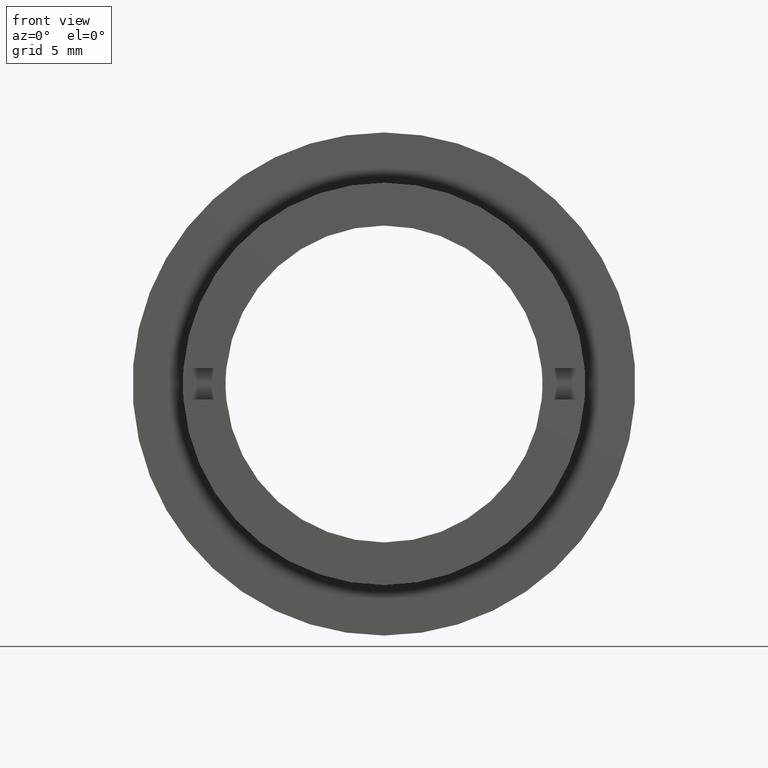
[diagram: clean part render]
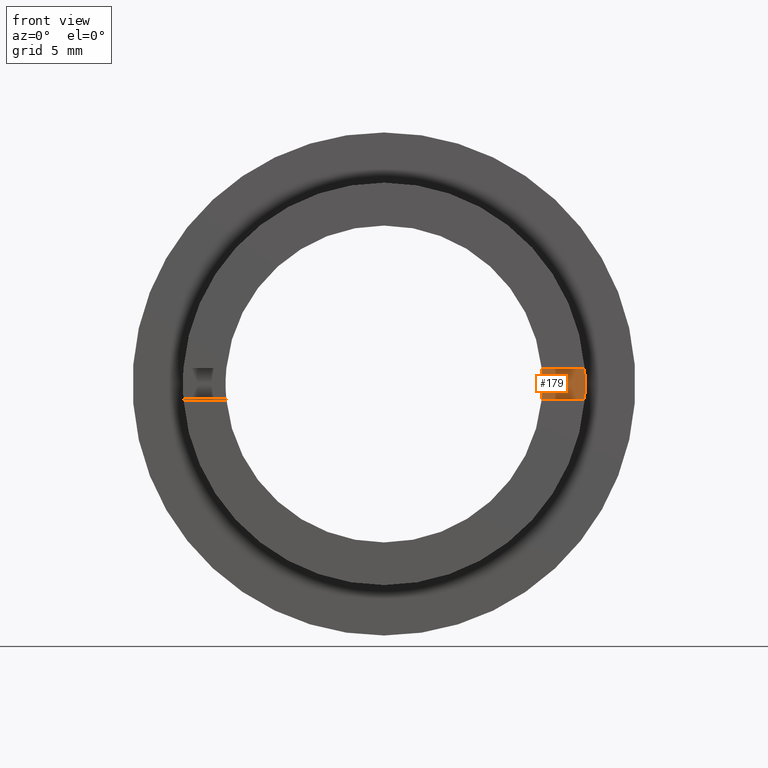
[diagram: same view with one face highlighted and labeled with its STEP entity id]
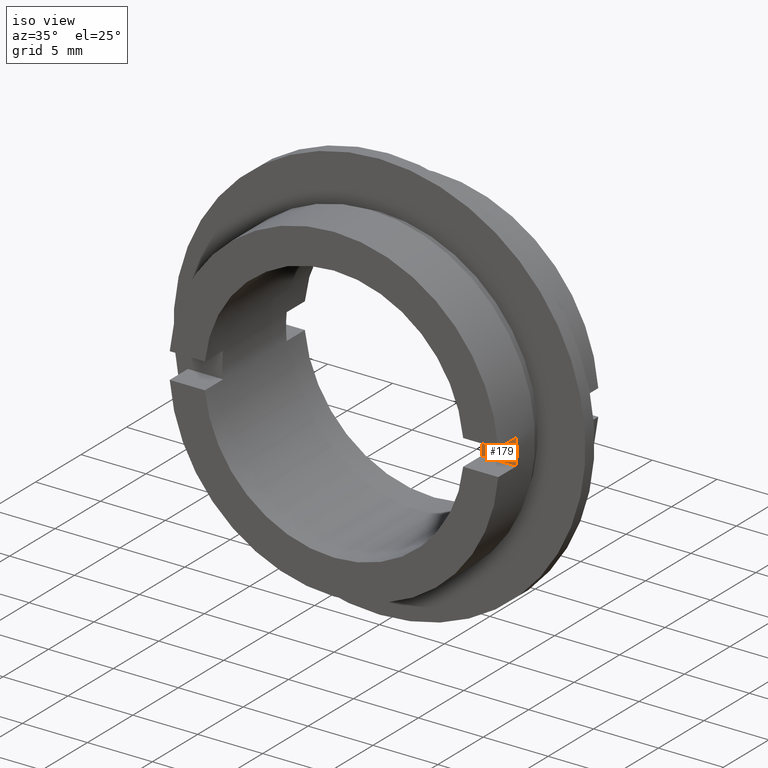
[diagram: same view with one face highlighted and labeled with its STEP entity id]
A machine part, front view. The second image highlights one B-rep face of the part: STEP entity #179.
A second angle (iso view) of the same face is appended — the face is thin or edge-on in the first view.
In plain terms, the highlighted planar face has unit normal (0, 1, 0).
Its self-contained STEP definition (entity closure, byte-faithful):
#12 = LINE ( 'NONE', #36, #307 ) ;
#19 = DIRECTION ( 'NONE',  ( 0.0000000000000000000, -0.0000000000000000000, 1.000000000000000000 ) ) ;
#36 = CARTESIAN_POINT ( 'NONE',  ( -39.50000000000002100, 2.000000000000000000, -0.9999999999999995600 ) ) ;
#72 = PLANE ( 'NONE',  #766 ) ;
#93 = VERTEX_POINT ( 'NONE', #842 ) ;
#140 = DIRECTION ( 'NONE',  ( 0.0000000000000000000, 0.0000000000000000000, 1.000000000000000000 ) ) ;
#179 = ADVANCED_FACE ( 'NONE', ( #1066 ), #72, .F. ) ;
#206 = ORIENTED_EDGE ( 'NONE', *, *, #263, .T. ) ;
#214 = DIRECTION ( 'NONE',  ( 1.000000000000000000, -0.0000000000000000000, -0.0000000000000000000 ) ) ;
#228 = CARTESIAN_POINT ( 'NONE',  ( 9.949874371066195900, 1.999999999999998200, 1.000000000000000200 ) ) ;
#236 = CARTESIAN_POINT ( 'NONE',  ( -39.50000000000002100, 2.000000000000000000, 1.000000000000000200 ) ) ;
#257 = CARTESIAN_POINT ( 'NONE',  ( 12.66056870760551300, 1.999999999999998200, 1.000000000000000200 ) ) ;
#263 = EDGE_CURVE ( 'NONE', #298, #93, #437, .T. ) ;
#298 = VERTEX_POINT ( 'NONE', #228 ) ;
#307 = VECTOR ( 'NONE', #214, 1000.000000000000000 ) ;
#319 = DIRECTION ( 'NONE',  ( 0.0000000000000000000, 1.000000000000000000, 0.0000000000000000000 ) ) ;
#322 = CIRCLE ( 'NONE', #887, 12.69999999999999800 ) ;
#364 = EDGE_CURVE ( 'NONE', #93, #797, #12, .T. ) ;
#399 = CARTESIAN_POINT ( 'NONE',  ( 12.66056870760551300, 2.000000000000000000, -0.9999999999999995600 ) ) ;
#437 = CIRCLE ( 'NONE', #508, 9.999999999999996400 ) ;
#462 = EDGE_CURVE ( 'NONE', #298, #950, #565, .T. ) ;
#485 = ORIENTED_EDGE ( 'NONE', *, *, #462, .F. ) ;
#508 = AXIS2_PLACEMENT_3D ( 'NONE', #998, #783, #140 ) ;
#526 = DIRECTION ( 'NONE',  ( -0.0000000000000000000, -1.000000000000000000, -0.0000000000000000000 ) ) ;
#565 = LINE ( 'NONE', #871, #920 ) ;
#670 = EDGE_LOOP ( 'NONE', ( #206, #962, #1138, #485 ) ) ;
#766 = AXIS2_PLACEMENT_3D ( 'NONE', #236, #319, #19 ) ;
#783 = DIRECTION ( 'NONE',  ( 0.0000000000000000000, 1.000000000000000000, 0.0000000000000000000 ) ) ;
#797 = VERTEX_POINT ( 'NONE', #399 ) ;
#832 = EDGE_CURVE ( 'NONE', #797, #950, #322, .T. ) ;
#842 = CARTESIAN_POINT ( 'NONE',  ( 9.949874371066195900, 2.000000000000000000, -0.9999999999999995600 ) ) ;
#871 = CARTESIAN_POINT ( 'NONE',  ( -39.50000000000002100, 2.000000000000000000, 1.000000000000000200 ) ) ;
#887 = AXIS2_PLACEMENT_3D ( 'NONE', #1032, #526, #1121 ) ;
#920 = VECTOR ( 'NONE', #1077, 1000.000000000000000 ) ;
#950 = VERTEX_POINT ( 'NONE', #257 ) ;
#962 = ORIENTED_EDGE ( 'NONE', *, *, #364, .T. ) ;
#998 = CARTESIAN_POINT ( 'NONE',  ( 0.0000000000000000000, 1.999999999999998200, 0.0000000000000000000 ) ) ;
#1032 = CARTESIAN_POINT ( 'NONE',  ( 0.0000000000000000000, 1.999999999999998200, 0.0000000000000000000 ) ) ;
#1066 = FACE_OUTER_BOUND ( 'NONE', #670, .T. ) ;
#1077 = DIRECTION ( 'NONE',  ( 1.000000000000000000, -0.0000000000000000000, -0.0000000000000000000 ) ) ;
#1121 = DIRECTION ( 'NONE',  ( -6.217248937900876600E-015, 0.0000000000000000000, 1.000000000000000000 ) ) ;
#1138 = ORIENTED_EDGE ( 'NONE', *, *, #832, .T. ) ;